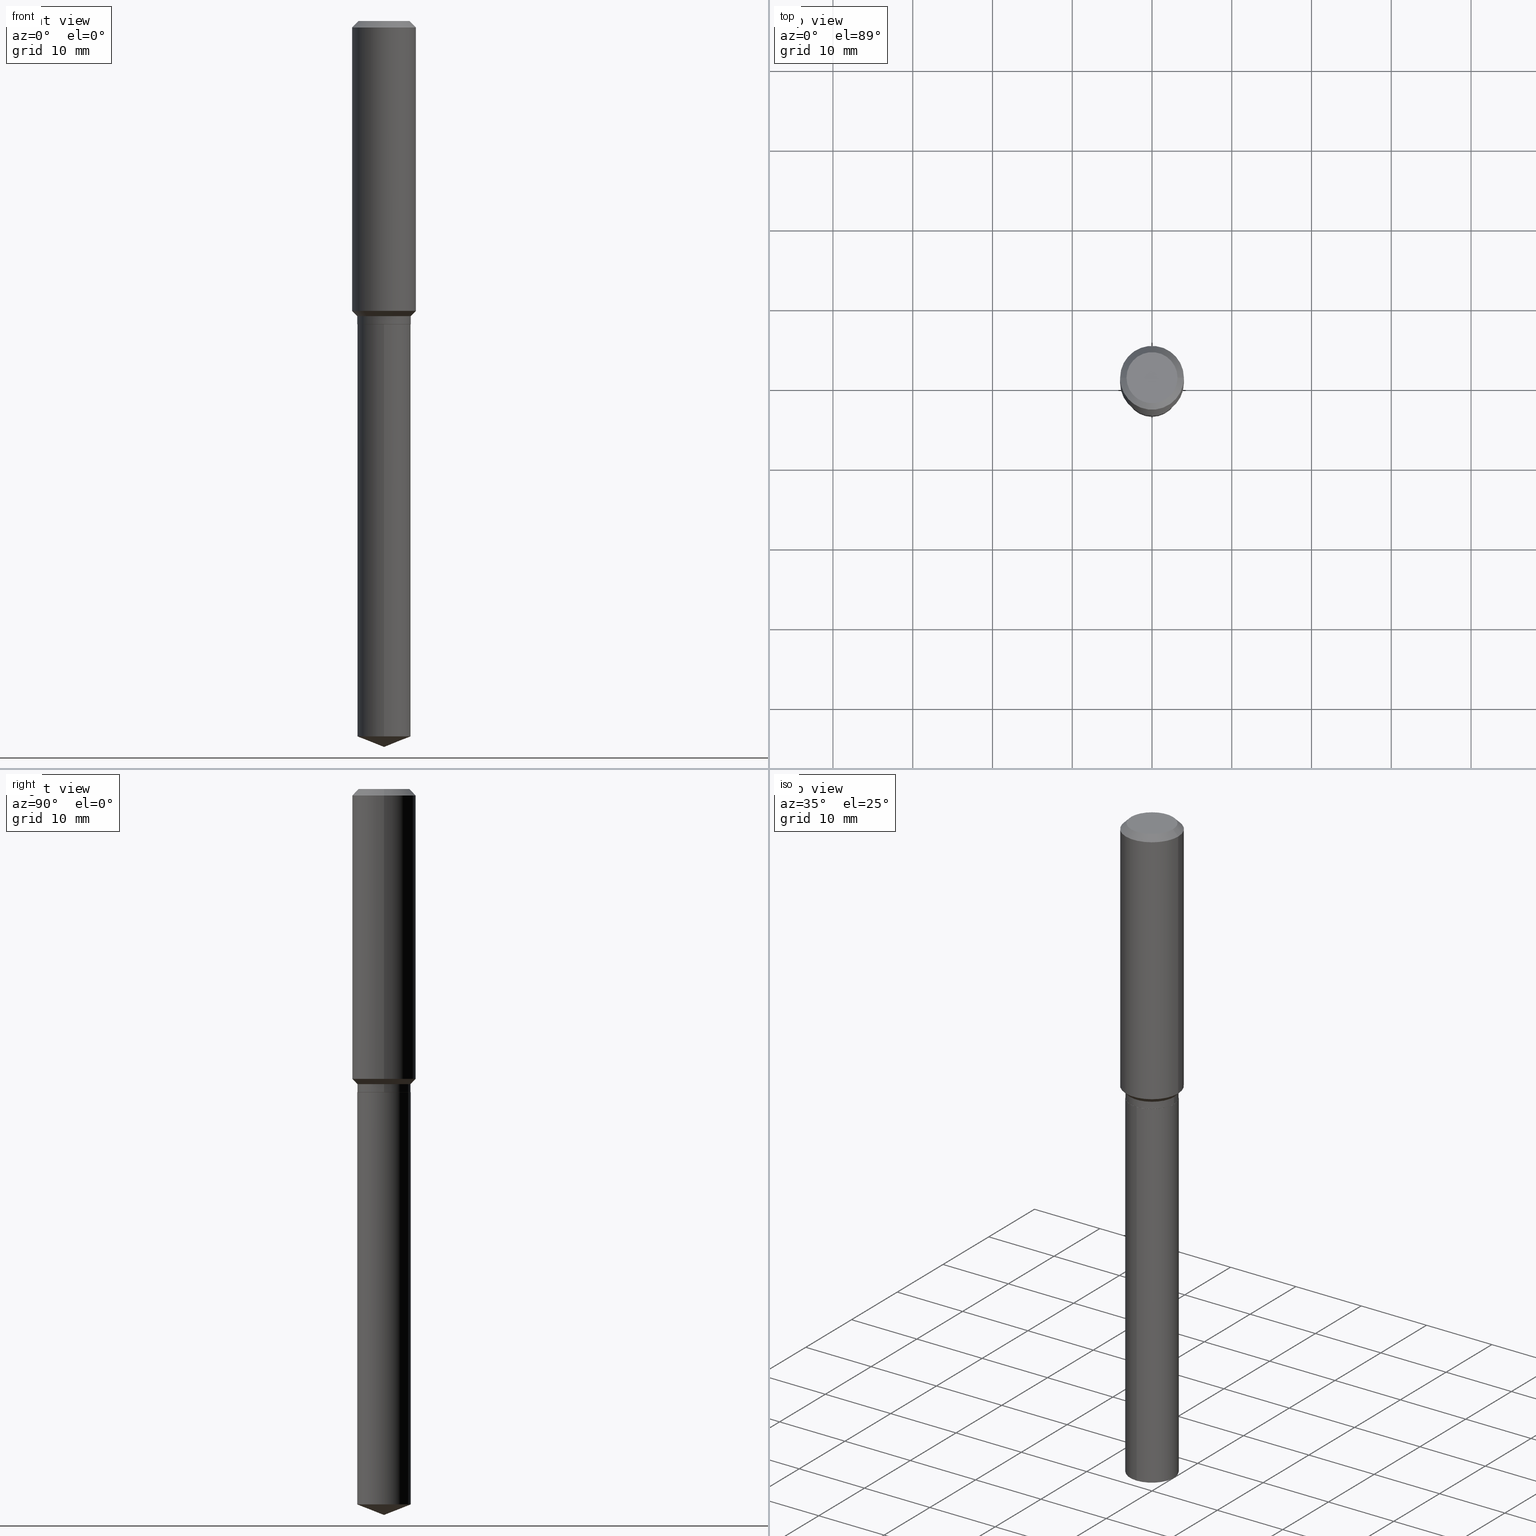
[diagram: canonical four-view strip — front | top / right | iso, engineering-drawing reading convention]
A machine part, canonical four-view strip (front | top / right | iso — engineering-drawing reading convention). The complete STEP part file that produces these views, byte-faithful:
ISO-10303-21;
HEADER;
FILE_DESCRIPTION (( 'STEP AP203' ),
    '1' );
FILE_NAME ('66540.STEP',
    '2024-04-25T00:34:06',
    ( '' ),
    ( '' ),
    'SwSTEP 2.0',
    'SolidWorks 2023',
    '' );
FILE_SCHEMA (( 'CONFIG_CONTROL_DESIGN' ));
ENDSEC;

DATA;
#1 = EDGE_CURVE ( 'NONE', #321, #283, #115, .T. ) ;
#2 = LOCAL_TIME ( 20, 34, 6.000000000000000000, #26 ) ;
#3 = CARTESIAN_POINT ( 'NONE',  ( 9.372058684676586479E-16, 0.1318999999999947437, -1.496400000000000841 ) ) ;
#4 = CARTESIAN_POINT ( 'NONE',  ( 8.761960870846505279E-29, -1.251019797580790401E-14, -3.583000000000000185 ) ) ;
#5 = ADVANCED_FACE ( 'NONE', ( #253 ), #365, .T. ) ;
#6 = CARTESIAN_POINT ( 'NONE',  ( -0.1313999999999999890, -4.290999520656112771E-15, -1.496400000000000396 ) ) ;
#7 = CARTESIAN_POINT ( 'NONE',  ( 3.659399521575439863E-29, -5.224652675444884140E-15, -1.496400000000000396 ) ) ;
#8 = DIRECTION ( 'NONE',  ( -6.982962677686265922E-15, -1.000000000000000000, 4.142301734138382417E-15 ) ) ;
#9 = CARTESIAN_POINT ( 'NONE',  ( 3.561580769328033122E-29, -5.084993421891157543E-15, -1.456400000000000139 ) ) ;
#10 = ADVANCED_FACE ( 'NONE', ( #457 ), #417, .T. ) ;
#11 = CARTESIAN_POINT ( 'NONE',  ( 3.561580769328033122E-29, -5.084993421891157543E-15, -1.456400000000000139 ) ) ;
#12 = AXIS2_PLACEMENT_3D ( 'NONE', #487, #227, #341 ) ;
#13 = CIRCLE ( 'NONE', #429, 0.1318999999999999895 ) ;
#14 = LINE ( 'NONE', #290, #64 ) ;
#15 = DIRECTION ( 'NONE',  ( -2.445468806185136877E-29, 3.491481338843145188E-15, 1.000000000000000000 ) ) ;
#16 = CARTESIAN_POINT ( 'NONE',  ( 3.498976767889693233E-29, -4.995611499616771828E-15, -1.430799999999999850 ) ) ;
#17 = DIRECTION ( 'NONE',  ( -2.445425864037539637E-29, 3.491542834442619495E-15, 1.000000000000000000 ) ) ;
#18 = ADVANCED_FACE ( 'NONE', ( #270 ), #168, .T. ) ;
#19 = ORIENTED_EDGE ( 'NONE', *, *, #68, .F. ) ;
#20 = CIRCLE ( 'NONE', #481, 0.1318999999999999895 ) ;
#21 = CC_DESIGN_APPROVAL ( #377, ( #258 ) ) ;
#22 = ORIENTED_EDGE ( 'NONE', *, *, #241, .T. ) ;
#23 = LINE ( 'NONE', #104, #467 ) ;
#24 = ORIENTED_EDGE ( 'NONE', *, *, #276, .T. ) ;
#25 = DIRECTION ( 'NONE',  ( 1.000000000000000000, -6.982962677686265133E-15, 0.000000000000000000 ) ) ;
#26 = COORDINATED_UNIVERSAL_TIME_OFFSET ( 5, 0, .BEHIND. ) ;
#27 = DIRECTION ( 'NONE',  ( 1.000000000000000000, -6.982962677686265133E-15, 0.000000000000000000 ) ) ;
#28 = EDGE_LOOP ( 'NONE', ( #484, #233 ) ) ;
#29 = AXIS2_PLACEMENT_3D ( 'NONE', #142, #285, #221 ) ;
#30 = APPROVAL_PERSON_ORGANIZATION ( #223, #78, #52 ) ;
#31 = VERTEX_POINT ( 'NONE', #424 ) ;
#32 = ORIENTED_EDGE ( 'NONE', *, *, #83, .F. ) ;
#33 = EDGE_CURVE ( 'NONE', #31, #102, #159, .T. ) ;
#34 = CIRCLE ( 'NONE', #81, 0.1260000000000000009 ) ;
#35 = EDGE_LOOP ( 'NONE', ( #332, #100, #349 ) ) ;
#36 = DIRECTION ( 'NONE',  ( 6.611014441532066589E-15, 0.9304175679820272382, 0.3665012267242905297 ) ) ;
#37 = CARTESIAN_POINT ( 'NONE',  ( -8.751458369089940116E-28, 1.249522103628457051E-13, 35.78707874015748303 ) ) ;
#38 = DIRECTION ( 'NONE',  ( -2.445468806185136597E-29, 3.491481338843145583E-15, 1.000000000000000000 ) ) ;
#39 = FACE_OUTER_BOUND ( 'NONE', #199, .T. ) ;
#40 = CALENDAR_DATE ( 2024, 24, 4 ) ;
#41 = MANIFOLD_SOLID_BREP ( 'Body-Move/Copy2[1]', #54 ) ;
#42 = CARTESIAN_POINT ( 'NONE',  ( -0.1575000000000000011, 9.898349595620272334E-16, -0.03150000000000019451 ) ) ;
#43 = CONICAL_SURFACE ( 'NONE', #418, 0.1313999999999999890, 0.7853981633972775267 ) ;
#44 = LOCAL_TIME ( 20, 34, 6.000000000000000000, #215 ) ;
#45 = DIRECTION ( 'NONE',  ( -6.982962677686265922E-15, -1.000000000000000000, 4.142301734138382417E-15 ) ) ;
#46 = DIRECTION ( 'NONE',  ( -6.982962677686265133E-15, -1.000000000000000000, 3.498627837350004222E-15 ) ) ;
#47 = DIRECTION ( 'NONE',  ( -2.445468806185136597E-29, 3.491481338843145583E-15, 1.000000000000000000 ) ) ;
#48 = EDGE_CURVE ( 'NONE', #451, #388, #162, .T. ) ;
#49 = DIRECTION ( 'NONE',  ( 1.000000000000000000, -6.982962677686265133E-15, 0.000000000000000000 ) ) ;
#50 = CARTESIAN_POINT ( 'NONE',  ( 0.1575000000000000011, -1.190510096822576026E-15, -0.03150000000000019451 ) ) ;
#51 = CARTESIAN_POINT ( 'NONE',  ( 0.1318999999999999895, -6.006046199077976747E-15, -1.456400000000000139 ) ) ;
#52 = APPROVAL_ROLE ( '' ) ;
#53 = DIRECTION ( 'NONE',  ( -2.445468806185136597E-29, 3.491481338843145583E-15, 1.000000000000000000 ) ) ;
#54 = CLOSED_SHELL ( 'NONE', ( #399, #268, #18, #10, #63 ) ) ;
#55 = VECTOR ( 'NONE', #380, 39.37007874015748143 ) ;
#56 = CIRCLE ( 'NONE', #275, 0.1313999999999999890 ) ;
#57 = DIRECTION ( 'NONE',  ( 1.000000000000000000, -6.982962677686265922E-15, 0.000000000000000000 ) ) ;
#58 = CC_DESIGN_DATE_AND_TIME_ASSIGNMENT ( #315, #65, ( #156 ) ) ;
#59 = ORIENTED_EDGE ( 'NONE', *, *, #459, .T. ) ;
#60 = PERSON_AND_ORGANIZATION ( #187, #175 ) ;
#61 =( LENGTH_UNIT ( ) NAMED_UNIT ( * ) SI_UNIT ( $, .METRE. ) );
#62 = ORIENTED_EDGE ( 'NONE', *, *, #363, .F. ) ;
#63 = ADVANCED_FACE ( 'NONE', ( #453 ), #261, .F. ) ;
#64 = VECTOR ( 'NONE', #369, 39.37007874015748143 ) ;
#65 = DATE_TIME_ROLE ( 'creation_date' ) ;
#66 = MANIFOLD_SOLID_BREP ( 'Body-Move/Copy2[2]', #293 ) ;
#67 = ORIENTED_EDGE ( 'NONE', *, *, #48, .T. ) ;
#68 = EDGE_CURVE ( 'NONE', #31, #283, #95, .T. ) ;
#69 = VERTEX_POINT ( 'NONE', #177 ) ;
#70 = CARTESIAN_POINT ( 'NONE',  ( 0.000000000000000000, 0.000000000000000000, 0.000000000000000000 ) ) ;
#71 = PLANE ( 'NONE',  #195 ) ;
#72 = VERTEX_POINT ( 'NONE', #360 ) ;
#73 = DIRECTION ( 'NONE',  ( -6.982962677686265133E-15, -1.000000000000000000, 3.498627837350004222E-15 ) ) ;
#74 = AXIS2_PLACEMENT_3D ( 'NONE', #153, #295, #414 ) ;
#75 = APPROVAL_PERSON_ORGANIZATION ( #322, #377, #404 ) ;
#76 = VERTEX_POINT ( 'NONE', #485 ) ;
#77 = CARTESIAN_POINT ( 'NONE',  ( 3.498976767889693233E-29, -4.995611499616771828E-15, -1.430799999999999850 ) ) ;
#78 = APPROVAL ( #296, 'UNSPECIFIED' ) ;
#79 = DIRECTION ( 'NONE',  ( -2.445468806185136597E-29, 3.491481338843145583E-15, 1.000000000000000000 ) ) ;
#80 = CARTESIAN_POINT ( 'NONE',  ( -9.439721640706201686E-47, 1.347742071746726764E-32, 3.860086710912459732E-18 ) ) ;
#81 = AXIS2_PLACEMENT_3D ( 'NONE', #486, #85, #263 ) ;
#82 = DIRECTION ( 'NONE',  ( -6.982962677686265922E-15, -1.000000000000000000, 4.142301734138382417E-15 ) ) ;
#83 = EDGE_CURVE ( 'NONE', #246, #451, #272, .T. ) ;
#84 = ORIENTED_EDGE ( 'NONE', *, *, #455, .F. ) ;
#85 = DIRECTION ( 'NONE',  ( -2.445468806185136597E-29, 3.491481338843145583E-15, 1.000000000000000000 ) ) ;
#86 = CARTESIAN_POINT ( 'NONE',  ( 0.000000000000000000, 0.000000000000000000, 0.000000000000000000 ) ) ;
#87 = CIRCLE ( 'NONE', #320, 0.1318999999999999895 ) ;
#88 = DIRECTION ( 'NONE',  ( -2.445425864037539637E-29, 3.491542834442619495E-15, 1.000000000000000000 ) ) ;
#89 = AXIS2_PLACEMENT_3D ( 'NONE', #425, #47, #126 ) ;
#90 = APPROVAL_DATE_TIME ( #264, #78 ) ;
#91 = CARTESIAN_POINT ( 'NONE',  ( -0.1575000000000000844, 1.119104808822158392E-15, -7.747322767151481189E-30 ) ) ;
#92 = LINE ( 'NONE', #198, #161 ) ;
#93 = FACE_OUTER_BOUND ( 'NONE', #259, .T. ) ;
#94 = CARTESIAN_POINT ( 'NONE',  ( -0.1575000000000000011, -1.433691772073007448E-15, -0.03150000000000019451 ) ) ;
#95 = CIRCLE ( 'NONE', #211, 0.1318999999999999895 ) ;
#96 = AXIS2_PLACEMENT_3D ( 'NONE', #266, #427, #421 ) ;
#97 = CC_DESIGN_PERSON_AND_ORGANIZATION_ASSIGNMENT ( #281, #386, ( #358 ) ) ;
#98 = AXIS2_PLACEMENT_3D ( 'NONE', #376, #338, #45 ) ;
#99 = LINE ( 'NONE', #50, #256 ) ;
#100 = ORIENTED_EDGE ( 'NONE', *, *, #113, .T. ) ;
#101 = PERSON_AND_ORGANIZATION ( #187, #175 ) ;
#102 = VERTEX_POINT ( 'NONE', #446 ) ;
#103 = LENGTH_MEASURE_WITH_UNIT ( LENGTH_MEASURE( 0.02539999999999999897 ), #61 );
#104 = CARTESIAN_POINT ( 'NONE',  ( -0.1318999999999999895, -4.147787553423586065E-15, -1.456400000000000139 ) ) ;
#105 = ORIENTED_EDGE ( 'NONE', *, *, #113, .F. ) ;
#106 = CONICAL_SURFACE ( 'NONE', #74, 0.1575000000000000011, 0.7853981633974449483 ) ;
#107 = ORIENTED_EDGE ( 'NONE', *, *, #363, .T. ) ;
#108 = ORIENTED_EDGE ( 'NONE', *, *, #328, .T. ) ;
#109 = FACE_OUTER_BOUND ( 'NONE', #472, .T. ) ;
#110 = ORIENTED_EDGE ( 'NONE', *, *, #292, .F. ) ;
#111 = CIRCLE ( 'NONE', #310, 0.1318999999999999895 ) ;
#112 = EDGE_CURVE ( 'NONE', #311, #201, #218, .T. ) ;
#113 = EDGE_CURVE ( 'NONE', #314, #176, #364, .T. ) ;
#114 = EDGE_CURVE ( 'NONE', #314, #69, #407, .T. ) ;
#115 = LINE ( 'NONE', #214, #374 ) ;
#116 = DIRECTION ( 'NONE',  ( 1.000000000000000000, -6.982962677686265922E-15, 4.876176775795935793E-29 ) ) ;
#117 = EDGE_CURVE ( 'NONE', #321, #72, #344, .T. ) ;
#118 = CYLINDRICAL_SURFACE ( 'NONE', #444, 0.1575000000000000844 ) ;
#119 = AXIS2_PLACEMENT_3D ( 'NONE', #37, #454, #73 ) ;
#120 = ORIENTED_EDGE ( 'NONE', *, *, #353, .F. ) ;
#121 = CARTESIAN_POINT ( 'NONE',  ( 3.561580769328033122E-29, -5.084993421891157543E-15, -1.456400000000000139 ) ) ;
#122 = CC_DESIGN_PERSON_AND_ORGANIZATION_ASSIGNMENT ( #60, #203, ( #358 ) ) ;
#123 = CARTESIAN_POINT ( 'NONE',  ( -9.210527771867316403E-16, -0.1319000000000122574, -3.531043208266388955 ) ) ;
#124 = FACE_OUTER_BOUND ( 'NONE', #244, .T. ) ;
#125 = CC_DESIGN_APPROVAL ( #78, ( #156 ) ) ;
#126 = DIRECTION ( 'NONE',  ( 1.000000000000000000, -6.982962677686265922E-15, 4.876176775795935793E-29 ) ) ;
#127 = DIRECTION ( 'NONE',  ( 0.000000000000000000, 0.000000000000000000, 1.000000000000000000 ) ) ;
#128 = LINE ( 'NONE', #378, #230 ) ;
#129 = EDGE_LOOP ( 'NONE', ( #476, #354, #144, #132 ) ) ;
#130 =( CONVERSION_BASED_UNIT ( 'INCH', #103 ) LENGTH_UNIT ( ) NAMED_UNIT ( #443 ) );
#131 = DIRECTION ( 'NONE',  ( 1.000000000000000000, -6.982962677686269077E-15, 0.000000000000000000 ) ) ;
#132 = ORIENTED_EDGE ( 'NONE', *, *, #340, .F. ) ;
#133 = AXIS2_PLACEMENT_3D ( 'NONE', #462, #53, #297 ) ;
#134 = CALENDAR_DATE ( 2024, 24, 4 ) ;
#135 = ORIENTED_EDGE ( 'NONE', *, *, #455, .T. ) ;
#136 = ORIENTED_EDGE ( 'NONE', *, *, #406, .F. ) ;
#137 = ORIENTED_EDGE ( 'NONE', *, *, #328, .F. ) ;
#138 = VECTOR ( 'NONE', #220, 39.37007874015748143 ) ;
#139 = PLANE ( 'NONE',  #287 ) ;
#140 = ORIENTED_EDGE ( 'NONE', *, *, #459, .F. ) ;
#141 = APPROVAL_STATUS ( 'not_yet_approved' ) ;
#142 = CARTESIAN_POINT ( 'NONE',  ( 3.658176787172346501E-29, -5.222906934775461847E-15, -1.495900000000000230 ) ) ;
#143 = CC_DESIGN_PERSON_AND_ORGANIZATION_ASSIGNMENT ( #166, #305, ( #156 ) ) ;
#144 = ORIENTED_EDGE ( 'NONE', *, *, #148, .T. ) ;
#145 = AXIS2_PLACEMENT_3D ( 'NONE', #345, #335, #185 ) ;
#146 = CIRCLE ( 'NONE', #12, 0.1318999999999999895 ) ;
#147 = EDGE_CURVE ( 'NONE', #176, #69, #146, .T. ) ;
#148 = EDGE_CURVE ( 'NONE', #239, #246, #379, .T. ) ;
#149 = CARTESIAN_POINT ( 'NONE',  ( 0.1575000000000001676, -6.095428121352361674E-15, -1.430799999999999850 ) ) ;
#150 = DIRECTION ( 'NONE',  ( 1.000000000000000000, 0.000000000000000000, 0.000000000000000000 ) ) ;
#151 = VECTOR ( 'NONE', #383, 39.37007874015748143 ) ;
#152 = DIRECTION ( 'NONE',  ( -2.445468806185136877E-29, 3.491481338843145188E-15, 1.000000000000000000 ) ) ;
#153 = CARTESIAN_POINT ( 'NONE',  ( 7.703226739483228723E-31, -1.099816621735597661E-16, -0.03150000000000019451 ) ) ;
#154 = APPLICATION_CONTEXT ( 'configuration controlled 3d designs of mechanical parts and assemblies' ) ;
#155 = CYLINDRICAL_SURFACE ( 'NONE', #96, 0.1318999999999999895 ) ;
#156 = PRODUCT_DEFINITION ( 'UNKNOWN', '', #358, #387 ) ;
#157 = EDGE_CURVE ( 'NONE', #72, #31, #298, .T. ) ;
#158 = DIRECTION ( 'NONE',  ( 1.000000000000000000, -6.982962677686269077E-15, 0.000000000000000000 ) ) ;
#159 = LINE ( 'NONE', #197, #160 ) ;
#160 = VECTOR ( 'NONE', #373, 39.37007874015748143 ) ;
#161 = VECTOR ( 'NONE', #300, 39.37007874015748143 ) ;
#162 = LINE ( 'NONE', #91, #450 ) ;
#163 = DIRECTION ( 'NONE',  ( -2.445468806185136597E-29, 3.491481338843145583E-15, 1.000000000000000000 ) ) ;
#164 = APPROVAL_PERSON_ORGANIZATION ( #101, #488, #309 ) ;
#165 = LINE ( 'NONE', #336, #55 ) ;
#166 = PERSON_AND_ORGANIZATION ( #187, #175 ) ;
#167 = FACE_OUTER_BOUND ( 'NONE', #217, .T. ) ;
#168 = CONICAL_SURFACE ( 'NONE', #381, 99.94676754583997536, 1.195550537616119513 ) ;
#169 = ORIENTED_EDGE ( 'NONE', *, *, #157, .T. ) ;
#170 = CARTESIAN_POINT ( 'NONE',  ( 0.1318999999999999895, -6.006046199077976747E-15, -1.456400000000000139 ) ) ;
#171 = ORIENTED_EDGE ( 'NONE', *, *, #422, .T. ) ;
#172 = ORIENTED_EDGE ( 'NONE', *, *, #340, .T. ) ;
#173 = ORIENTED_EDGE ( 'NONE', *, *, #426, .T. ) ;
#174 = DATE_TIME_ROLE ( 'classification_date' ) ;
#175 = ORGANIZATION ( 'UNSPECIFIED', 'UNSPECIFIED', '' ) ;
#176 = VERTEX_POINT ( 'NONE', #123 ) ;
#177 = CARTESIAN_POINT ( 'NONE',  ( 9.372058684676578590E-16, 0.1318999999999876105, -3.531043208266390288 ) ) ;
#178 = DIRECTION ( 'NONE',  ( 0.7071067811864267805, -2.468850131080992517E-15, 0.7071067811866682540 ) ) ;
#179 = ORIENTED_EDGE ( 'NONE', *, *, #278, .T. ) ;
#180 = VECTOR ( 'NONE', #343, 39.37007874015748143 ) ;
#181 = CARTESIAN_POINT ( 'NONE',  ( 0.1318999999999999895, -6.143959711962281051E-15, -1.495900000000000230 ) ) ;
#182 = DIRECTION ( 'NONE',  ( -2.445468806185136597E-29, 3.491481338843145583E-15, 1.000000000000000000 ) ) ;
#183 = AXIS2_PLACEMENT_3D ( 'NONE', #458, #228, #57 ) ;
#184 = ADVANCED_FACE ( 'NONE', ( #192 ), #302, .T. ) ;
#185 = DIRECTION ( 'NONE',  ( 1.000000000000000000, -6.982962677686267499E-15, 4.876176775795936353E-29 ) ) ;
#186 = CYLINDRICAL_SURFACE ( 'NONE', #89, 0.1318999999999999895 ) ;
#187 = PERSON ( 'UNSPECIFIED', 'UNSPECIFIED', 'UNSPECIFIED', ('UNSPECIFIED'), ('UNSPECIFIED'), ('UNSPECIFIED') ) ;
#188 = CARTESIAN_POINT ( 'NONE',  ( 3.659399521575438742E-29, -5.224652675444883351E-15, -1.496400000000000174 ) ) ;
#189 = CARTESIAN_POINT ( 'NONE',  ( 0.1313999999999999890, -6.142213971292859548E-15, -1.496400000000000396 ) ) ;
#190 = EDGE_CURVE ( 'NONE', #69, #436, #14, .T. ) ;
#191 = CARTESIAN_POINT ( 'NONE',  ( 7.703226739483228723E-31, -1.099816621735597661E-16, -0.03150000000000019451 ) ) ;
#192 = FACE_OUTER_BOUND ( 'NONE', #323, .T. ) ;
#193 = CIRCLE ( 'NONE', #356, 0.1575000000000001676 ) ;
#194 = DIRECTION ( 'NONE',  ( -2.445425864037539637E-29, 3.491542834442619495E-15, 1.000000000000000000 ) ) ;
#195 = AXIS2_PLACEMENT_3D ( 'NONE', #434, #208, #316 ) ;
#196 = DIRECTION ( 'NONE',  ( 1.000000000000000000, -6.982962677686265922E-15, 0.000000000000000000 ) ) ;
#197 = CARTESIAN_POINT ( 'NONE',  ( -0.1318999999999999895, 9.372058684675720704E-16, -6.488075384046219970E-30 ) ) ;
#198 = CARTESIAN_POINT ( 'NONE',  ( 0.1318999999999999895, -9.210527771868184150E-16, 6.431677167274839042E-30 ) ) ;
#199 = EDGE_LOOP ( 'NONE', ( #430, #210, #173, #136 ) ) ;
#200 = AXIS2_PLACEMENT_3D ( 'NONE', #423, #371, #49 ) ;
#201 = VERTEX_POINT ( 'NONE', #257 ) ;
#202 = CC_DESIGN_SECURITY_CLASSIFICATION ( #258, ( #358 ) ) ;
#203 = PERSON_AND_ORGANIZATION_ROLE ( 'design_supplier' ) ;
#204 = ORIENTED_EDGE ( 'NONE', *, *, #147, .T. ) ;
#205 = APPROVAL_STATUS ( 'not_yet_approved' ) ;
#206 = DIRECTION ( 'NONE',  ( -0.7071067811865482389, 7.493145998870357316E-15, 0.7071067811865467956 ) ) ;
#207 = EDGE_LOOP ( 'NONE', ( #445, #172, #108, #400 ) ) ;
#208 = DIRECTION ( 'NONE',  ( 2.438088387897960049E-29, -3.491481338843145188E-15, -1.000000000000000000 ) ) ;
#209 = CARTESIAN_POINT ( 'NONE',  ( 7.703226739483228723E-31, -1.099816621735597661E-16, -0.03150000000000019451 ) ) ;
#210 = ORIENTED_EDGE ( 'NONE', *, *, #353, .T. ) ;
#211 = AXIS2_PLACEMENT_3D ( 'NONE', #249, #250, #402 ) ;
#212 = CONICAL_SURFACE ( 'NONE', #294, 0.1318999999999999895, 0.7853981633974492782 ) ;
#213 = DIRECTION ( 'NONE',  ( -2.445468806185136597E-29, 3.491481338843145583E-15, 1.000000000000000000 ) ) ;
#214 = CARTESIAN_POINT ( 'NONE',  ( 0.1313999999999999890, -6.142213971292859548E-15, -1.496400000000000396 ) ) ;
#215 = COORDINATED_UNIVERSAL_TIME_OFFSET ( 5, 0, .BEHIND. ) ;
#216 = CALENDAR_DATE ( 2024, 24, 4 ) ;
#217 = EDGE_LOOP ( 'NONE', ( #120, #110, #395, #361 ) ) ;
#218 = CIRCLE ( 'NONE', #382, 0.1260000000000000009 ) ;
#219 = DIRECTION ( 'NONE',  ( 1.000000000000000000, -6.982962677686265922E-15, 4.876281427513067258E-29 ) ) ;
#220 = DIRECTION ( 'NONE',  ( 0.7071067811865482389, -2.468850131082264555E-15, 0.7071067811865467956 ) ) ;
#221 = DIRECTION ( 'NONE',  ( 1.000000000000000000, -6.982962677686269077E-15, 0.000000000000000000 ) ) ;
#222 = DIRECTION ( 'NONE',  ( 1.000000000000000000, -6.982962677686267499E-15, 4.876176775795936353E-29 ) ) ;
#223 = PERSON_AND_ORGANIZATION ( #187, #175 ) ;
#224 = ADVANCED_FACE ( 'NONE', ( #449 ), #118, .T. ) ;
#225 = FACE_OUTER_BOUND ( 'NONE', #447, .T. ) ;
#226 = ADVANCED_FACE ( 'NONE', ( #39 ), #106, .T. ) ;
#227 = DIRECTION ( 'NONE',  ( -2.445425864037539637E-29, 3.491542834442619495E-15, 1.000000000000000000 ) ) ;
#228 = DIRECTION ( 'NONE',  ( -2.445468806185136597E-29, 3.491481338843145583E-15, 1.000000000000000000 ) ) ;
#229 = AXIS2_PLACEMENT_3D ( 'NONE', #435, #299, #465 ) ;
#230 = VECTOR ( 'NONE', #15, 39.37007874015748143 ) ;
#231 = DIRECTION ( 'NONE',  ( 2.445468806185136597E-29, -3.491481338843145583E-15, -1.000000000000000000 ) ) ;
#232 = COORDINATED_UNIVERSAL_TIME_OFFSET ( 5, 0, .BEHIND. ) ;
#233 = ORIENTED_EDGE ( 'NONE', *, *, #456, .F. ) ;
#234 = CC_DESIGN_PERSON_AND_ORGANIZATION_ASSIGNMENT ( #304, #331, ( #280 ) ) ;
#235 = ORIENTED_EDGE ( 'NONE', *, *, #391, .F. ) ;
#236 = FACE_OUTER_BOUND ( 'NONE', #357, .T. ) ;
#237 = ORIENTED_EDGE ( 'NONE', *, *, #83, .T. ) ;
#238 = AXIS2_PLACEMENT_3D ( 'NONE', #301, #127, #150 ) ;
#239 = VERTEX_POINT ( 'NONE', #170 ) ;
#240 = CALENDAR_DATE ( 2024, 24, 4 ) ;
#241 = EDGE_CURVE ( 'NONE', #283, #31, #452, .T. ) ;
#242 = DIRECTION ( 'NONE',  ( -2.438088387897960049E-29, 3.491481338843145188E-15, 1.000000000000000000 ) ) ;
#243 = DIRECTION ( 'NONE',  ( -6.982962677686265922E-15, -1.000000000000000000, 4.142301734138382417E-15 ) ) ;
#244 = EDGE_LOOP ( 'NONE', ( #204, #279, #140, #62 ) ) ;
#245 = DATE_AND_TIME ( #216, #265 ) ;
#246 = VERTEX_POINT ( 'NONE', #149 ) ;
#247 = SHAPE_DEFINITION_REPRESENTATION ( #478, #324 ) ;
#248 = CIRCLE ( 'NONE', #375, 0.1575000000000000011 ) ;
#249 = CARTESIAN_POINT ( 'NONE',  ( 3.658176787172346501E-29, -5.222906934775461847E-15, -1.495900000000000230 ) ) ;
#250 = DIRECTION ( 'NONE',  ( -2.445468806185136597E-29, 3.491481338843145583E-15, 1.000000000000000000 ) ) ;
#251 = ADVANCED_FACE ( 'NONE', ( #109 ), #43, .T. ) ;
#252 = ADVANCED_FACE ( 'NONE', ( #370 ), #368, .T. ) ;
#253 = FACE_OUTER_BOUND ( 'NONE', #207, .T. ) ;
#254 = DIRECTION ( 'NONE',  ( -2.445468806185136597E-29, 3.491481338843145583E-15, 1.000000000000000000 ) ) ;
#255 = ORIENTED_EDGE ( 'NONE', *, *, #426, .F. ) ;
#256 = VECTOR ( 'NONE', #339, 39.37007874015748143 ) ;
#257 = CARTESIAN_POINT ( 'NONE',  ( -0.1260000000000000009, 9.348441284752484904E-16, 3.860086710906114178E-18 ) ) ;
#258 = SECURITY_CLASSIFICATION ( '', '', #437 ) ;
#259 = EDGE_LOOP ( 'NONE', ( #440, #471, #286, #19 ) ) ;
#260 = DIRECTION ( 'NONE',  ( 1.000000000000000000, -6.982962677686265922E-15, 4.876176775795935793E-29 ) ) ;
#261 = PLANE ( 'NONE',  #229 ) ;
#262 = DIRECTION ( 'NONE',  ( -2.445425864037539637E-29, 3.491542834442619495E-15, 1.000000000000000000 ) ) ;
#263 = DIRECTION ( 'NONE',  ( 1.000000000000000000, -6.982962677686265922E-15, 4.876281427513067258E-29 ) ) ;
#264 = DATE_AND_TIME ( #40, #401 ) ;
#265 = LOCAL_TIME ( 20, 34, 6.000000000000000000, #442 ) ;
#266 = CARTESIAN_POINT ( 'NONE',  ( 3.659399521575438742E-29, -5.224652675444883351E-15, -1.496400000000000174 ) ) ;
#267 = APPLICATION_CONTEXT ( 'configuration controlled 3d designs of mechanical parts and assemblies' ) ;
#268 = ADVANCED_FACE ( 'NONE', ( #333 ), #438, .T. ) ;
#269 = DIRECTION ( 'NONE',  ( -1.000000000000000000, 6.982962677686265922E-15, 0.000000000000000000 ) ) ;
#270 = FACE_OUTER_BOUND ( 'NONE', #35, .T. ) ;
#271 = CARTESIAN_POINT ( 'NONE',  ( 0.1575000000000000011, -1.209798283909146741E-15, -0.03150000000000019451 ) ) ;
#272 = CIRCLE ( 'NONE', #348, 0.1575000000000001676 ) ;
#273 = CIRCLE ( 'NONE', #183, 0.1575000000000000011 ) ;
#274 = CARTESIAN_POINT ( 'NONE',  ( 3.561580769328033122E-29, -5.084993421891157543E-15, -1.456400000000000139 ) ) ;
#275 = AXIS2_PLACEMENT_3D ( 'NONE', #7, #313, #27 ) ;
#276 = EDGE_CURVE ( 'NONE', #239, #102, #20, .T. ) ;
#277 = ORIENTED_EDGE ( 'NONE', *, *, #292, .T. ) ;
#278 = EDGE_CURVE ( 'NONE', #69, #176, #111, .T. ) ;
#279 = ORIENTED_EDGE ( 'NONE', *, *, #190, .T. ) ;
#280 = PRODUCT ( '66540', '66540', '', ( #337 ) ) ;
#281 = PERSON_AND_ORGANIZATION ( #187, #175 ) ;
#282 = ADVANCED_FACE ( 'NONE', ( #359 ), #139, .F. ) ;
#283 = VERTEX_POINT ( 'NONE', #181 ) ;
#284 = ORIENTED_EDGE ( 'NONE', *, *, #33, .T. ) ;
#285 = DIRECTION ( 'NONE',  ( -2.445468806185136597E-29, 3.491481338843145583E-15, 1.000000000000000000 ) ) ;
#286 = ORIENTED_EDGE ( 'NONE', *, *, #1, .T. ) ;
#287 = AXIS2_PLACEMENT_3D ( 'NONE', #289, #242, #116 ) ;
#288 = AXIS2_PLACEMENT_3D ( 'NONE', #9, #409, #158 ) ;
#289 = CARTESIAN_POINT ( 'NONE',  ( 1.486955544557679650E-29, -8.335716098366654427E-15, -1.496400000000000396 ) ) ;
#290 = CARTESIAN_POINT ( 'NONE',  ( 9.372058684676085552E-16, 0.1318999999999947437, -1.496400000000000841 ) ) ;
#291 = ORIENTED_EDGE ( 'NONE', *, *, #1, .F. ) ;
#292 = EDGE_CURVE ( 'NONE', #201, #311, #34, .T. ) ;
#293 = CLOSED_SHELL ( 'NONE', ( #251, #226, #224, #184, #308, #252, #330, #5, #403, #483, #282, #413 ) ) ;
#294 = AXIS2_PLACEMENT_3D ( 'NONE', #11, #464, #131 ) ;
#295 = DIRECTION ( 'NONE',  ( 2.445468806185136597E-29, -3.491481338843145583E-15, -1.000000000000000000 ) ) ;
#296 = APPROVAL_STATUS ( 'not_yet_approved' ) ;
#297 = DIRECTION ( 'NONE',  ( 1.000000000000000000, -6.982962677686265133E-15, 0.000000000000000000 ) ) ;
#298 = LINE ( 'NONE', #6, #180 ) ;
#299 = DIRECTION ( 'NONE',  ( 2.445425864037539637E-29, -3.491542834442619101E-15, -1.000000000000000000 ) ) ;
#300 = DIRECTION ( 'NONE',  ( -2.445468806185136877E-29, 3.491481338843145188E-15, 1.000000000000000000 ) ) ;
#301 = CARTESIAN_POINT ( 'NONE',  ( 0.000000000000000000, 0.000000000000000000, 0.000000000000000000 ) ) ;
#302 = CONICAL_SURFACE ( 'NONE', #288, 0.1318999999999999895, 0.7853981633974492782 ) ;
#303 = DIRECTION ( 'NONE',  ( 1.000000000000000000, -6.982962677686269077E-15, 0.000000000000000000 ) ) ;
#304 = PERSON_AND_ORGANIZATION ( #187, #175 ) ;
#305 = PERSON_AND_ORGANIZATION_ROLE ( 'creator' ) ;
#306 = DIRECTION ( 'NONE',  ( 1.000000000000000000, -6.982962677686267499E-15, 0.000000000000000000 ) ) ;
#307 = PRODUCT_RELATED_PRODUCT_CATEGORY ( 'detail', '', ( #280 ) ) ;
#308 = ADVANCED_FACE ( 'NONE', ( #225 ), #186, .T. ) ;
#309 = APPROVAL_ROLE ( '' ) ;
#310 = AXIS2_PLACEMENT_3D ( 'NONE', #411, #262, #82 ) ;
#311 = VERTEX_POINT ( 'NONE', #466 ) ;
#312 = EDGE_CURVE ( 'NONE', #283, #239, #92, .T. ) ;
#313 = DIRECTION ( 'NONE',  ( -2.445468806185136597E-29, 3.491481338843145583E-15, 1.000000000000000000 ) ) ;
#314 = VERTEX_POINT ( 'NONE', #4 ) ;
#315 = DATE_AND_TIME ( #433, #439 ) ;
#316 = DIRECTION ( 'NONE',  ( -1.000000000000000000, 6.982962677686265922E-15, -4.876176775795935793E-29 ) ) ;
#317 = EDGE_LOOP ( 'NONE', ( #325, #179, #107, #84 ) ) ;
#318 = CARTESIAN_POINT ( 'NONE',  ( 3.659399521575438742E-29, -5.224652675444883351E-15, -1.496400000000000174 ) ) ;
#319 = AXIS2_PLACEMENT_3D ( 'NONE', #188, #194, #8 ) ;
#320 = AXIS2_PLACEMENT_3D ( 'NONE', #274, #460, #303 ) ;
#321 = VERTEX_POINT ( 'NONE', #189 ) ;
#322 = PERSON_AND_ORGANIZATION ( #187, #175 ) ;
#323 = EDGE_LOOP ( 'NONE', ( #24, #171, #32, #385 ) ) ;
#324 = ADVANCED_BREP_SHAPE_REPRESENTATION ( '66540', ( #41, #66, #238 ), #419 ) ;
#325 = ORIENTED_EDGE ( 'NONE', *, *, #190, .F. ) ;
#326 = CONICAL_SURFACE ( 'NONE', #428, 0.1575000000000000011, 0.7853981633974449483 ) ;
#327 = CARTESIAN_POINT ( 'NONE',  ( 8.761960870846503037E-29, -1.251019797580790401E-14, -3.583000000000000185 ) ) ;
#328 = EDGE_CURVE ( 'NONE', #246, #367, #128, .T. ) ;
#329 = EDGE_LOOP ( 'NONE', ( #469, #477, #482, #235 ) ) ;
#330 = ADVANCED_FACE ( 'NONE', ( #346 ), #212, .T. ) ;
#331 = PERSON_AND_ORGANIZATION_ROLE ( 'design_owner' ) ;
#332 = ORIENTED_EDGE ( 'NONE', *, *, #114, .F. ) ;
#333 = FACE_OUTER_BOUND ( 'NONE', #489, .T. ) ;
#334 = CONICAL_SURFACE ( 'NONE', #133, 0.1313999999999999890, 0.7853981633972775267 ) ;
#335 = DIRECTION ( 'NONE',  ( -2.445468806185136597E-29, 3.491481338843145583E-15, 1.000000000000000000 ) ) ;
#336 = CARTESIAN_POINT ( 'NONE',  ( -9.210527771867817330E-16, -0.1319000000000052075, -1.496399999999999730 ) ) ;
#337 = MECHANICAL_CONTEXT ( 'NONE', #154, 'mechanical' ) ;
#338 = DIRECTION ( 'NONE',  ( -2.445425864037539637E-29, 3.491542834442619495E-15, 1.000000000000000000 ) ) ;
#339 = DIRECTION ( 'NONE',  ( 0.7071067811865451302, -7.319954787623248157E-15, -0.7071067811865499042 ) ) ;
#340 = EDGE_CURVE ( 'NONE', #451, #246, #193, .T. ) ;
#341 = DIRECTION ( 'NONE',  ( -6.982962677686265922E-15, -1.000000000000000000, 4.142301734138382417E-15 ) ) ;
#342 = LINE ( 'NONE', #42, #151 ) ;
#343 = DIRECTION ( 'NONE',  ( -0.7071067811864267805, 7.493145998869918709E-15, 0.7071067811866682540 ) ) ;
#344 = CIRCLE ( 'NONE', #200, 0.1313999999999999890 ) ;
#345 = CARTESIAN_POINT ( 'NONE',  ( 0.000000000000000000, 0.000000000000000000, 0.000000000000000000 ) ) ;
#346 = FACE_OUTER_BOUND ( 'NONE', #129, .T. ) ;
#347 = ORIENTED_EDGE ( 'NONE', *, *, #114, .T. ) ;
#348 = AXIS2_PLACEMENT_3D ( 'NONE', #77, #254, #362 ) ;
#349 = ORIENTED_EDGE ( 'NONE', *, *, #278, .F. ) ;
#350 =( NAMED_UNIT ( * ) SI_UNIT ( $, .STERADIAN. ) SOLID_ANGLE_UNIT ( ) );
#351 = UNCERTAINTY_MEASURE_WITH_UNIT (LENGTH_MEASURE( 1.000000000000000082E-05 ), #130, 'distance_accuracy_value', 'NONE');
#352 = ORIENTED_EDGE ( 'NONE', *, *, #276, .F. ) ;
#353 = EDGE_CURVE ( 'NONE', #311, #367, #99, .T. ) ;
#354 = ORIENTED_EDGE ( 'NONE', *, *, #391, .T. ) ;
#355 = DATE_AND_TIME ( #240, #44 ) ;
#356 = AXIS2_PLACEMENT_3D ( 'NONE', #16, #163, #306 ) ;
#357 = EDGE_LOOP ( 'NONE', ( #277, #392 ) ) ;
#358 = PRODUCT_DEFINITION_FORMATION_WITH_SPECIFIED_SOURCE ( 'ANY', '', #280, .NOT_KNOWN. ) ;
#359 = FACE_OUTER_BOUND ( 'NONE', #28, .T. ) ;
#360 = CARTESIAN_POINT ( 'NONE',  ( -0.1313999999999999890, -4.288350293482001570E-15, -1.496400000000000396 ) ) ;
#361 = ORIENTED_EDGE ( 'NONE', *, *, #415, .T. ) ;
#362 = DIRECTION ( 'NONE',  ( 1.000000000000000000, -6.982962677686267499E-15, 0.000000000000000000 ) ) ;
#363 = EDGE_CURVE ( 'NONE', #176, #76, #165, .T. ) ;
#364 = LINE ( 'NONE', #327, #490 ) ;
#365 = CYLINDRICAL_SURFACE ( 'NONE', #145, 0.1575000000000000844 ) ;
#366 = CARTESIAN_POINT ( 'NONE',  ( 8.762090515050494278E-29, -1.251001393177779982E-14, -3.583000000000000185 ) ) ;
#367 = VERTEX_POINT ( 'NONE', #271 ) ;
#368 = CYLINDRICAL_SURFACE ( 'NONE', #461, 0.1318999999999999895 ) ;
#369 = DIRECTION ( 'NONE',  ( -2.445425864037539356E-29, 3.491542834442619101E-15, 1.000000000000000000 ) ) ;
#370 = FACE_OUTER_BOUND ( 'NONE', #329, .T. ) ;
#371 = DIRECTION ( 'NONE',  ( -2.445468806185136597E-29, 3.491481338843145583E-15, 1.000000000000000000 ) ) ;
#372 = COORDINATED_UNIVERSAL_TIME_OFFSET ( 5, 0, .BEHIND. ) ;
#373 = DIRECTION ( 'NONE',  ( -2.445468806185136877E-29, 3.491481338843145188E-15, 1.000000000000000000 ) ) ;
#374 = VECTOR ( 'NONE', #178, 39.37007874015748143 ) ;
#375 = AXIS2_PLACEMENT_3D ( 'NONE', #209, #405, #196 ) ;
#376 = CARTESIAN_POINT ( 'NONE',  ( 3.659399521575438742E-29, -5.224652675444883351E-15, -1.496400000000000174 ) ) ;
#377 = APPROVAL ( #141, 'UNSPECIFIED' ) ;
#378 = CARTESIAN_POINT ( 'NONE',  ( 0.1575000000000000844, -1.099816621735587677E-15, 7.679978421878603638E-30 ) ) ;
#379 = LINE ( 'NONE', #51, #138 ) ;
#380 = DIRECTION ( 'NONE',  ( -2.445425864037539356E-29, 3.491542834442619101E-15, 1.000000000000000000 ) ) ;
#381 = AXIS2_PLACEMENT_3D ( 'NONE', #463, #88, #46 ) ;
#382 = AXIS2_PLACEMENT_3D ( 'NONE', #80, #79, #219 ) ;
#383 = DIRECTION ( 'NONE',  ( -0.7071067811865451302, 2.468850131082231817E-15, -0.7071067811865499042 ) ) ;
#384 = DATE_AND_TIME ( #134, #2 ) ;
#385 = ORIENTED_EDGE ( 'NONE', *, *, #148, .F. ) ;
#386 = PERSON_AND_ORGANIZATION_ROLE ( 'creator' ) ;
#387 = DESIGN_CONTEXT ( 'detailed design', #267, 'design' ) ;
#388 = VERTEX_POINT ( 'NONE', #94 ) ;
#389 = VECTOR ( 'NONE', #36, 39.37007874015748143 ) ;
#390 =( NAMED_UNIT ( * ) PLANE_ANGLE_UNIT ( ) SI_UNIT ( $, .RADIAN. ) );
#391 = EDGE_CURVE ( 'NONE', #102, #239, #87, .T. ) ;
#392 = ORIENTED_EDGE ( 'NONE', *, *, #112, .T. ) ;
#393 = PERSON_AND_ORGANIZATION ( #187, #175 ) ;
#394 = ORIENTED_EDGE ( 'NONE', *, *, #241, .F. ) ;
#395 = ORIENTED_EDGE ( 'NONE', *, *, #406, .T. ) ;
#396 = APPROVAL_DATE_TIME ( #245, #377 ) ;
#397 = DIRECTION ( 'NONE',  ( -2.445468806185136597E-29, 3.491481338843145583E-15, 1.000000000000000000 ) ) ;
#398 = CC_DESIGN_PERSON_AND_ORGANIZATION_ASSIGNMENT ( #393, #473, ( #258 ) ) ;
#399 = ADVANCED_FACE ( 'NONE', ( #124 ), #155, .T. ) ;
#400 = ORIENTED_EDGE ( 'NONE', *, *, #415, .F. ) ;
#401 = LOCAL_TIME ( 20, 34, 6.000000000000000000, #372 ) ;
#402 = DIRECTION ( 'NONE',  ( 1.000000000000000000, -6.982962677686269077E-15, 0.000000000000000000 ) ) ;
#403 = ADVANCED_FACE ( 'NONE', ( #167 ), #326, .T. ) ;
#404 = APPROVAL_ROLE ( '' ) ;
#405 = DIRECTION ( 'NONE',  ( -2.445468806185136597E-29, 3.491481338843145583E-15, 1.000000000000000000 ) ) ;
#406 = EDGE_CURVE ( 'NONE', #201, #388, #342, .T. ) ;
#407 = LINE ( 'NONE', #366, #389 ) ;
#408 = ORIENTED_EDGE ( 'NONE', *, *, #117, .T. ) ;
#409 = DIRECTION ( 'NONE',  ( -2.445468806185136597E-29, 3.491481338843145583E-15, 1.000000000000000000 ) ) ;
#410 = EDGE_LOOP ( 'NONE', ( #237, #67, #255, #137 ) ) ;
#411 = CARTESIAN_POINT ( 'NONE',  ( 8.634968647158386129E-29, -1.232869658991473909E-14, -3.531043208266389843 ) ) ;
#412 = APPLICATION_PROTOCOL_DEFINITION ( 'international standard', 'config_control_design', 1994, #154 ) ;
#413 = ADVANCED_FACE ( 'NONE', ( #93 ), #334, .T. ) ;
#414 = DIRECTION ( 'NONE',  ( -1.000000000000000000, 6.982962677686265922E-15, 0.000000000000000000 ) ) ;
#415 = EDGE_CURVE ( 'NONE', #388, #367, #273, .T. ) ;
#416 = CARTESIAN_POINT ( 'NONE',  ( -0.1575000000000001676, -3.876506690794614224E-15, -1.430799999999999850 ) ) ;
#417 = CYLINDRICAL_SURFACE ( 'NONE', #319, 0.1318999999999999895 ) ;
#418 = AXIS2_PLACEMENT_3D ( 'NONE', #479, #397, #25 ) ;
#419 =( GEOMETRIC_REPRESENTATION_CONTEXT ( 3 ) GLOBAL_UNCERTAINTY_ASSIGNED_CONTEXT ( ( #351 ) ) GLOBAL_UNIT_ASSIGNED_CONTEXT ( ( #130, #390, #350 ) ) REPRESENTATION_CONTEXT ( 'NONE', 'WORKASPACE' ) );
#420 = APPLICATION_PROTOCOL_DEFINITION ( 'international standard', 'config_control_design', 1994, #267 ) ;
#421 = DIRECTION ( 'NONE',  ( -6.982962677686265922E-15, -1.000000000000000000, 4.142301734138382417E-15 ) ) ;
#422 = EDGE_CURVE ( 'NONE', #102, #451, #23, .T. ) ;
#423 = CARTESIAN_POINT ( 'NONE',  ( 3.659399521575439863E-29, -5.224652675444884140E-15, -1.496400000000000396 ) ) ;
#424 = CARTESIAN_POINT ( 'NONE',  ( -0.1318999999999999895, -4.216744309865738217E-15, -1.495900000000000230 ) ) ;
#425 = CARTESIAN_POINT ( 'NONE',  ( 0.000000000000000000, 0.000000000000000000, 0.000000000000000000 ) ) ;
#426 = EDGE_CURVE ( 'NONE', #367, #388, #248, .T. ) ;
#427 = DIRECTION ( 'NONE',  ( -2.445425864037539637E-29, 3.491542834442619495E-15, 1.000000000000000000 ) ) ;
#428 = AXIS2_PLACEMENT_3D ( 'NONE', #191, #231, #269 ) ;
#429 = AXIS2_PLACEMENT_3D ( 'NONE', #318, #17, #243 ) ;
#430 = ORIENTED_EDGE ( 'NONE', *, *, #112, .F. ) ;
#431 = APPROVAL_DATE_TIME ( #384, #488 ) ;
#432 = ORIENTED_EDGE ( 'NONE', *, *, #147, .F. ) ;
#433 = CALENDAR_DATE ( 2024, 24, 4 ) ;
#434 = CARTESIAN_POINT ( 'NONE',  ( -4.719860820353100843E-47, 6.738710358733633822E-33, 1.930043355456229866E-18 ) ) ;
#435 = CARTESIAN_POINT ( 'NONE',  ( 3.659399521575438742E-29, -5.224652675444883351E-15, -1.496400000000000174 ) ) ;
#436 = VERTEX_POINT ( 'NONE', #3 ) ;
#437 = SECURITY_CLASSIFICATION_LEVEL ( 'unclassified' ) ;
#438 = CONICAL_SURFACE ( 'NONE', #119, 99.94676754583997536, 1.195550537616119513 ) ;
#439 = LOCAL_TIME ( 20, 34, 6.000000000000000000, #232 ) ;
#440 = ORIENTED_EDGE ( 'NONE', *, *, #157, .F. ) ;
#441 = EDGE_LOOP ( 'NONE', ( #59, #135 ) ) ;
#442 = COORDINATED_UNIVERSAL_TIME_OFFSET ( 5, 0, .BEHIND. ) ;
#443 = DIMENSIONAL_EXPONENTS ( 1.000000000000000000, 0.000000000000000000, 0.000000000000000000, 0.000000000000000000, 0.000000000000000000, 0.000000000000000000, 0.000000000000000000 ) ;
#444 = AXIS2_PLACEMENT_3D ( 'NONE', #86, #38, #222 ) ;
#445 = ORIENTED_EDGE ( 'NONE', *, *, #48, .F. ) ;
#446 = CARTESIAN_POINT ( 'NONE',  ( -0.1318999999999999895, -4.216744309865738217E-15, -1.456400000000000139 ) ) ;
#447 = EDGE_LOOP ( 'NONE', ( #22, #284, #352, #480 ) ) ;
#448 = DIRECTION ( 'NONE',  ( -6.497071151882120625E-15, -0.9304175679820246847, 0.3665012267242971356 ) ) ;
#449 = FACE_OUTER_BOUND ( 'NONE', #410, .T. ) ;
#450 = VECTOR ( 'NONE', #152, 39.37007874015748143 ) ;
#451 = VERTEX_POINT ( 'NONE', #416 ) ;
#452 = CIRCLE ( 'NONE', #29, 0.1318999999999999895 ) ;
#453 = FACE_OUTER_BOUND ( 'NONE', #441, .T. ) ;
#454 = DIRECTION ( 'NONE',  ( -2.445425864037539637E-29, 3.491542834442619495E-15, 1.000000000000000000 ) ) ;
#455 = EDGE_CURVE ( 'NONE', #436, #76, #468, .T. ) ;
#456 = EDGE_CURVE ( 'NONE', #72, #321, #56, .T. ) ;
#457 = FACE_OUTER_BOUND ( 'NONE', #317, .T. ) ;
#458 = CARTESIAN_POINT ( 'NONE',  ( 7.703226739483228723E-31, -1.099816621735597661E-16, -0.03150000000000019451 ) ) ;
#459 = EDGE_CURVE ( 'NONE', #76, #436, #13, .T. ) ;
#460 = DIRECTION ( 'NONE',  ( -2.445468806185136597E-29, 3.491481338843145583E-15, 1.000000000000000000 ) ) ;
#461 = AXIS2_PLACEMENT_3D ( 'NONE', #70, #182, #260 ) ;
#462 = CARTESIAN_POINT ( 'NONE',  ( 3.659399521575439863E-29, -5.224652675444884140E-15, -1.496400000000000396 ) ) ;
#463 = CARTESIAN_POINT ( 'NONE',  ( -8.751458369089940116E-28, 1.249522103628457051E-13, 35.78707874015748303 ) ) ;
#464 = DIRECTION ( 'NONE',  ( -2.445468806185136597E-29, 3.491481338843145583E-15, 1.000000000000000000 ) ) ;
#465 = DIRECTION ( 'NONE',  ( 6.982962677686265922E-15, 1.000000000000000000, -3.491542834442619101E-15 ) ) ;
#466 = CARTESIAN_POINT ( 'NONE',  ( 0.1260000000000000009, -1.027466422270894443E-15, 3.860086710919128072E-18 ) ) ;
#467 = VECTOR ( 'NONE', #206, 39.37007874015748143 ) ;
#468 = CIRCLE ( 'NONE', #98, 0.1318999999999999895 ) ;
#469 = ORIENTED_EDGE ( 'NONE', *, *, #33, .F. ) ;
#470 = CC_DESIGN_DATE_AND_TIME_ASSIGNMENT ( #355, #174, ( #258 ) ) ;
#471 = ORIENTED_EDGE ( 'NONE', *, *, #456, .T. ) ;
#472 = EDGE_LOOP ( 'NONE', ( #408, #169, #394, #291 ) ) ;
#473 = PERSON_AND_ORGANIZATION_ROLE ( 'classification_officer' ) ;
#474 = DIRECTION ( 'NONE',  ( 1.000000000000000000, -6.982962677686269077E-15, 0.000000000000000000 ) ) ;
#475 = CC_DESIGN_APPROVAL ( #488, ( #358 ) ) ;
#476 = ORIENTED_EDGE ( 'NONE', *, *, #422, .F. ) ;
#477 = ORIENTED_EDGE ( 'NONE', *, *, #68, .T. ) ;
#478 = PRODUCT_DEFINITION_SHAPE ( 'NONE', 'NONE',  #156 ) ;
#479 = CARTESIAN_POINT ( 'NONE',  ( 3.659399521575439863E-29, -5.224652675444884140E-15, -1.496400000000000396 ) ) ;
#480 = ORIENTED_EDGE ( 'NONE', *, *, #312, .F. ) ;
#481 = AXIS2_PLACEMENT_3D ( 'NONE', #121, #213, #474 ) ;
#482 = ORIENTED_EDGE ( 'NONE', *, *, #312, .T. ) ;
#483 = ADVANCED_FACE ( 'NONE', ( #236 ), #71, .F. ) ;
#484 = ORIENTED_EDGE ( 'NONE', *, *, #117, .F. ) ;
#485 = CARTESIAN_POINT ( 'NONE',  ( -9.210527771867817330E-16, -0.1319000000000052075, -1.496399999999999730 ) ) ;
#486 = CARTESIAN_POINT ( 'NONE',  ( -9.439721640706201686E-47, 1.347742071746726764E-32, 3.860086710912459732E-18 ) ) ;
#487 = CARTESIAN_POINT ( 'NONE',  ( 8.634968647158386129E-29, -1.232869658991473909E-14, -3.531043208266389843 ) ) ;
#488 = APPROVAL ( #205, 'UNSPECIFIED' ) ;
#489 = EDGE_LOOP ( 'NONE', ( #105, #347, #432 ) ) ;
#490 = VECTOR ( 'NONE', #448, 39.37007874015747433 ) ;
ENDSEC;
END-ISO-10303-21;
